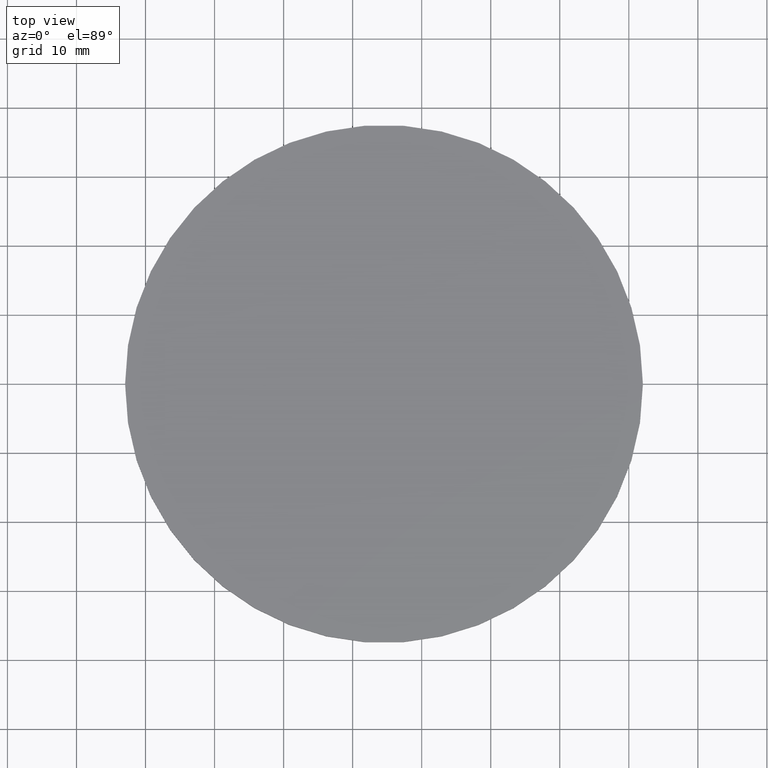
[diagram: clean part render]
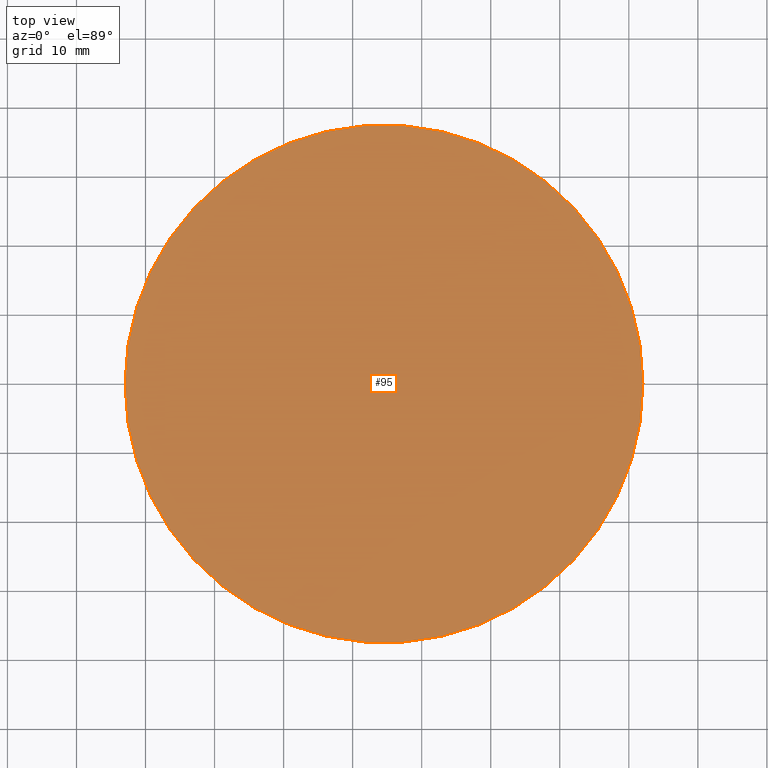
[diagram: same view with one face highlighted and labeled with its STEP entity id]
A machine part, top view. The second image highlights one B-rep face of the part: STEP entity #95.
In plain terms, the highlighted planar face has unit normal (0, 0, 1).
Its self-contained STEP definition (entity closure, byte-faithful):
#2 = CARTESIAN_POINT ( 'NONE',  ( -42.95782393561467700, 0.0000000000000000000, 2.299999999999999800 ) ) ;
#8 = DIRECTION ( 'NONE',  ( 0.0000000000000000000, 0.0000000000000000000, 1.000000000000000000 ) ) ;
#9 = EDGE_LOOP ( 'NONE', ( #37, #51 ) ) ;
#11 = DIRECTION ( 'NONE',  ( 0.0000000000000000000, 0.0000000000000000000, 1.000000000000000000 ) ) ;
#13 = PLANE ( 'NONE',  #62 ) ;
#15 = CARTESIAN_POINT ( 'NONE',  ( -5.457823935614669600, 0.0000000000000000000, 2.299999999999999800 ) ) ;
#18 = EDGE_CURVE ( 'NONE', #20, #69, #79, .T. ) ;
#20 = VERTEX_POINT ( 'NONE', #135 ) ;
#23 = AXIS2_PLACEMENT_3D ( 'NONE', #15, #88, #115 ) ;
#25 = EDGE_CURVE ( 'NONE', #69, #20, #41, .T. ) ;
#37 = ORIENTED_EDGE ( 'NONE', *, *, #25, .T. ) ;
#41 = CIRCLE ( 'NONE', #113, 37.50000000000000700 ) ;
#46 = CARTESIAN_POINT ( 'NONE',  ( -5.457823935614669600, 0.0000000000000000000, 2.299999999999999800 ) ) ;
#51 = ORIENTED_EDGE ( 'NONE', *, *, #18, .T. ) ;
#62 = AXIS2_PLACEMENT_3D ( 'NONE', #46, #11, #104 ) ;
#69 = VERTEX_POINT ( 'NONE', #2 ) ;
#79 = CIRCLE ( 'NONE', #23, 37.50000000000000700 ) ;
#80 = DIRECTION ( 'NONE',  ( 1.000000000000000000, 0.0000000000000000000, 0.0000000000000000000 ) ) ;
#88 = DIRECTION ( 'NONE',  ( 0.0000000000000000000, 0.0000000000000000000, 1.000000000000000000 ) ) ;
#95 = ADVANCED_FACE ( 'NONE', ( #138 ), #13, .T. ) ;
#102 = CARTESIAN_POINT ( 'NONE',  ( -5.457823935614669600, 0.0000000000000000000, 2.299999999999999800 ) ) ;
#104 = DIRECTION ( 'NONE',  ( 1.000000000000000000, 0.0000000000000000000, -0.0000000000000000000 ) ) ;
#113 = AXIS2_PLACEMENT_3D ( 'NONE', #102, #8, #80 ) ;
#115 = DIRECTION ( 'NONE',  ( 1.000000000000000000, 0.0000000000000000000, 0.0000000000000000000 ) ) ;
#135 = CARTESIAN_POINT ( 'NONE',  ( 32.04217606438533700, 4.592425496802575200E-015, 2.299999999999999800 ) ) ;
#138 = FACE_OUTER_BOUND ( 'NONE', #9, .T. ) ;